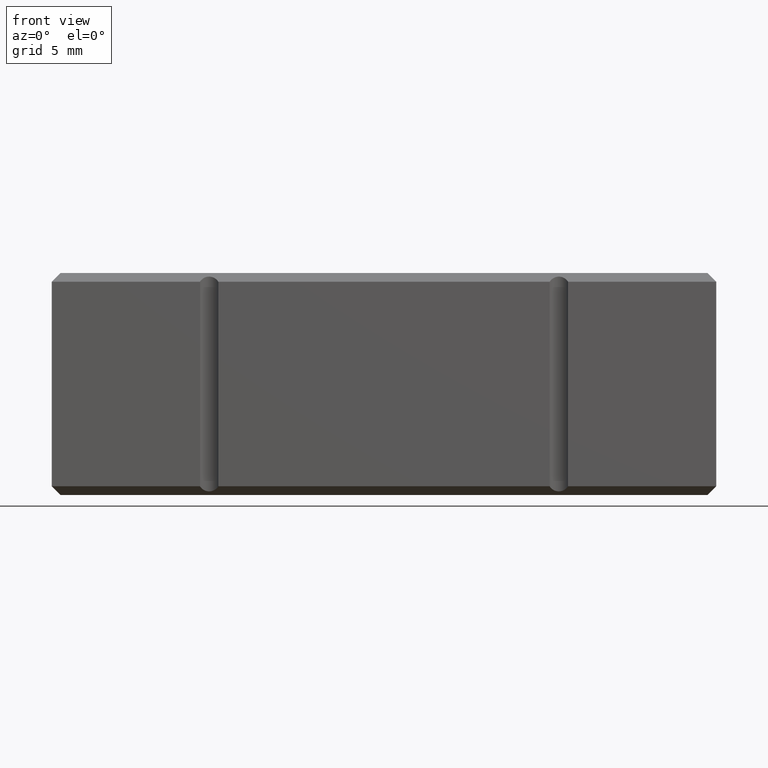
[diagram: clean part render]
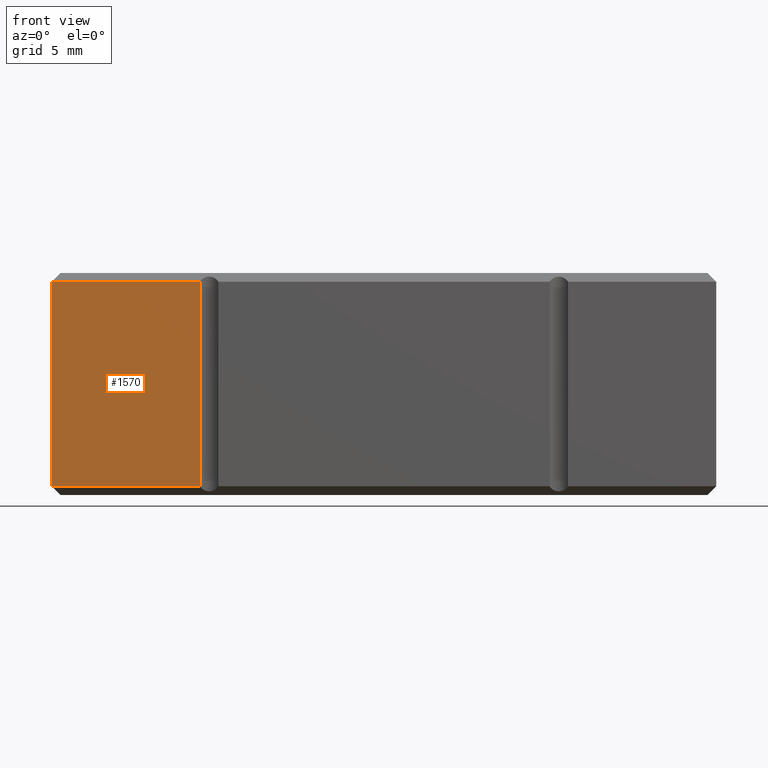
[diagram: same view with one face highlighted and labeled with its STEP entity id]
A machine part, front view. The second image highlights one B-rep face of the part: STEP entity #1570.
In plain terms, the highlighted planar face has unit normal (0, 1, 0).
Its self-contained STEP definition (entity closure, byte-faithful):
#105 = FACE_OUTER_BOUND ( 'NONE', #1706, .T. ) ;
#172 = DIRECTION ( 'NONE',  ( -0.000000000000000000, -0.000000000000000000, -1.000000000000000000 ) ) ;
#313 = DIRECTION ( 'NONE',  ( 0.000000000000000000, 1.000000000000000000, 0.000000000000000000 ) ) ;
#406 = ORIENTED_EDGE ( 'NONE', *, *, #2601, .T. ) ;
#444 = VECTOR ( 'NONE', #2757, 1000.000000000000000 ) ;
#637 = VERTEX_POINT ( 'NONE', #1977 ) ;
#681 = CARTESIAN_POINT ( 'NONE',  ( 0.000000000000000000, 0.000000000000000000, 0.5000000000000004441 ) ) ;
#687 = LINE ( 'NONE', #1700, #444 ) ;
#1111 = EDGE_CURVE ( 'NONE', #1692, #1662, #1972, .T. ) ;
#1116 = PLANE ( 'NONE',  #1678 ) ;
#1333 = DIRECTION ( 'NONE',  ( 0.000000000000000000, -0.000000000000000000, 1.000000000000000000 ) ) ;
#1417 = LINE ( 'NONE', #2198, #1459 ) ;
#1459 = VECTOR ( 'NONE', #172, 1000.000000000000000 ) ;
#1487 = VERTEX_POINT ( 'NONE', #2191 ) ;
#1570 = ADVANCED_FACE ( 'NONE', ( #105 ), #1116, .F. ) ;
#1662 = VERTEX_POINT ( 'NONE', #2979 ) ;
#1678 = AXIS2_PLACEMENT_3D ( 'NONE', #2605, #313, #1333 ) ;
#1692 = VERTEX_POINT ( 'NONE', #681 ) ;
#1700 = CARTESIAN_POINT ( 'NONE',  ( 8.476683457321398052, 0.000000000000000000, 0.000000000000000000 ) ) ;
#1706 = EDGE_LOOP ( 'NONE', ( #2598, #2408, #2217, #406 ) ) ;
#1929 = LINE ( 'NONE', #3217, #2323 ) ;
#1972 = LINE ( 'NONE', #2462, #2003 ) ;
#1977 = CARTESIAN_POINT ( 'NONE',  ( 0.000000000000000000, 0.000000000000000000, 12.19999999999999574 ) ) ;
#2003 = VECTOR ( 'NONE', #2009, 1000.000000000000000 ) ;
#2009 = DIRECTION ( 'NONE',  ( 1.000000000000000000, 0.000000000000000000, 0.000000000000000000 ) ) ;
#2175 = EDGE_CURVE ( 'NONE', #1662, #1487, #687, .T. ) ;
#2191 = CARTESIAN_POINT ( 'NONE',  ( 8.476683457321398052, 0.000000000000000000, 12.19999999999999574 ) ) ;
#2198 = CARTESIAN_POINT ( 'NONE',  ( 0.000000000000000000, 0.000000000000000000, 12.69999999999999929 ) ) ;
#2217 = ORIENTED_EDGE ( 'NONE', *, *, #2612, .T. ) ;
#2323 = VECTOR ( 'NONE', #2952, 1000.000000000000000 ) ;
#2408 = ORIENTED_EDGE ( 'NONE', *, *, #2175, .T. ) ;
#2462 = CARTESIAN_POINT ( 'NONE',  ( 38.00000000000000000, 0.000000000000000000, 0.5000000000000004441 ) ) ;
#2598 = ORIENTED_EDGE ( 'NONE', *, *, #1111, .T. ) ;
#2601 = EDGE_CURVE ( 'NONE', #637, #1692, #1417, .T. ) ;
#2605 = CARTESIAN_POINT ( 'NONE',  ( 0.000000000000000000, 0.000000000000000000, 12.69999999999999929 ) ) ;
#2612 = EDGE_CURVE ( 'NONE', #1487, #637, #1929, .T. ) ;
#2757 = DIRECTION ( 'NONE',  ( -0.000000000000000000, -0.000000000000000000, 1.000000000000000000 ) ) ;
#2952 = DIRECTION ( 'NONE',  ( -1.000000000000000000, 0.000000000000000000, 0.000000000000000000 ) ) ;
#2979 = CARTESIAN_POINT ( 'NONE',  ( 8.476683457321398052, 0.000000000000000000, 0.5000000000000004441 ) ) ;
#3217 = CARTESIAN_POINT ( 'NONE',  ( 0.000000000000000000, 0.000000000000000000, 12.19999999999999574 ) ) ;